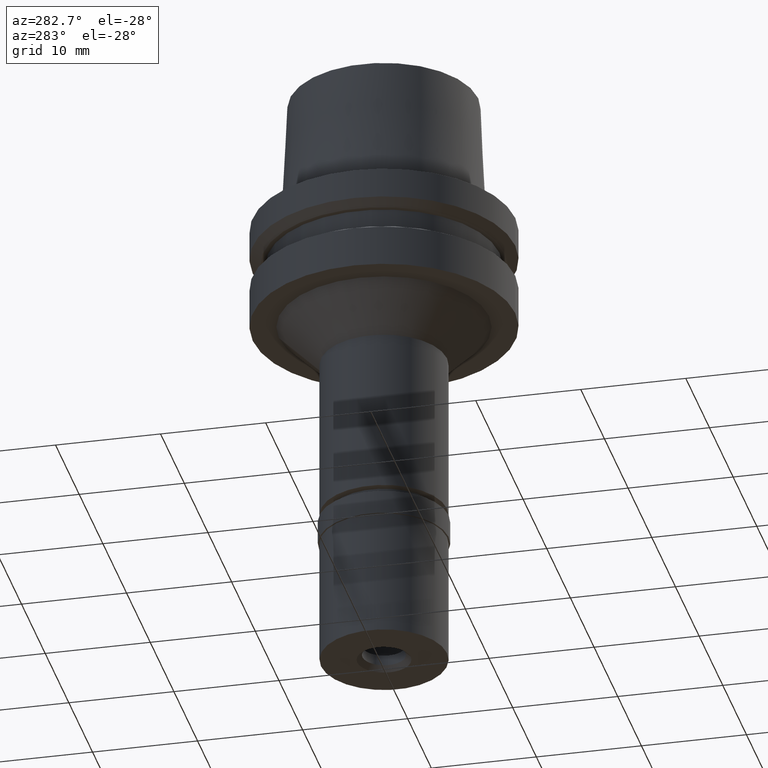
[diagram: clean part render]
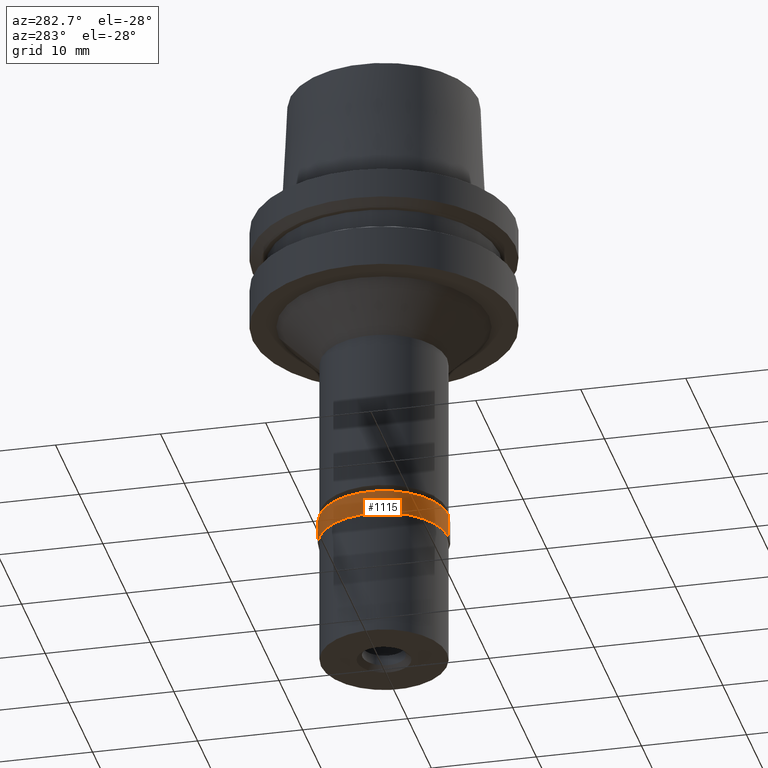
[diagram: same view with one face highlighted and labeled with its STEP entity id]
A machine part, auxiliary view. The second image highlights one B-rep face of the part: STEP entity #1115.
In plain terms, the highlighted cylindrical surface (partial cylindrical patch) has radius 6.15 mm, axis along (0, 0, 1).
Its self-contained STEP definition (entity closure, byte-faithful):
#48 = CARTESIAN_POINT ( 'NONE',  ( 0.0000000000000000000, -6.150000000000000355, 0.0000000000000000000 ) ) ;
#117 = CARTESIAN_POINT ( 'NONE',  ( 0.0000000000000000000, 6.150000000000000355, -2.299999999999999822 ) ) ;
#147 = DIRECTION ( 'NONE',  ( 0.0000000000000000000, 1.000000000000000000, 0.0000000000000000000 ) ) ;
#268 = EDGE_CURVE ( 'NONE', #1145, #2687, #2249, .T. ) ;
#279 = DIRECTION ( 'NONE',  ( 0.0000000000000000000, 0.0000000000000000000, -1.000000000000000000 ) ) ;
#453 = LINE ( 'NONE', #48, #860 ) ;
#483 = ORIENTED_EDGE ( 'NONE', *, *, #2011, .T. ) ;
#533 = CARTESIAN_POINT ( 'NONE',  ( 0.0000000000000000000, -6.150000000000000355, -2.299999999999999822 ) ) ;
#577 = CARTESIAN_POINT ( 'NONE',  ( 0.0000000000000000000, 0.0000000000000000000, -15.22500000000000142 ) ) ;
#613 = EDGE_CURVE ( 'NONE', #807, #2115, #1641, .T. ) ;
#624 = DIRECTION ( 'NONE',  ( 0.0000000000000000000, 1.000000000000000000, 0.0000000000000000000 ) ) ;
#652 = DIRECTION ( 'NONE',  ( 0.0000000000000000000, 0.0000000000000000000, 1.000000000000000000 ) ) ;
#763 = CARTESIAN_POINT ( 'NONE',  ( 0.0000000000000000000, -6.150000000000000355, 1.953992523340000041E-14 ) ) ;
#769 = AXIS2_PLACEMENT_3D ( 'NONE', #577, #1579, #147 ) ;
#807 = VERTEX_POINT ( 'NONE', #117 ) ;
#860 = VECTOR ( 'NONE', #279, 1000.000000000000000 ) ;
#906 = CARTESIAN_POINT ( 'NONE',  ( 0.0000000000000000000, 6.150000000000000355, 0.0000000000000000000 ) ) ;
#1115 = ADVANCED_FACE ( 'NONE', ( #2403 ), #2627, .T. ) ;
#1145 = VERTEX_POINT ( 'NONE', #763 ) ;
#1207 = DIRECTION ( 'NONE',  ( 0.0000000000000000000, -1.000000000000000000, 0.0000000000000000000 ) ) ;
#1575 = EDGE_CURVE ( 'NONE', #1145, #2115, #453, .T. ) ;
#1579 = DIRECTION ( 'NONE',  ( 0.0000000000000000000, 0.0000000000000000000, 1.000000000000000000 ) ) ;
#1612 = DIRECTION ( 'NONE',  ( 0.0000000000000000000, 0.0000000000000000000, -1.000000000000000000 ) ) ;
#1641 = CIRCLE ( 'NONE', #1982, 6.150000000000000355 ) ;
#1842 = CARTESIAN_POINT ( 'NONE',  ( 0.0000000000000000000, 0.0000000000000000000, -2.299999999999999822 ) ) ;
#1982 = AXIS2_PLACEMENT_3D ( 'NONE', #1842, #652, #624 ) ;
#2011 = EDGE_CURVE ( 'NONE', #2687, #807, #2559, .T. ) ;
#2075 = VECTOR ( 'NONE', #2544, 1000.000000000000000 ) ;
#2115 = VERTEX_POINT ( 'NONE', #533 ) ;
#2142 = ORIENTED_EDGE ( 'NONE', *, *, #1575, .F. ) ;
#2150 = EDGE_LOOP ( 'NONE', ( #2412, #2142, #2246, #483 ) ) ;
#2206 = AXIS2_PLACEMENT_3D ( 'NONE', #2241, #1612, #1207 ) ;
#2241 = CARTESIAN_POINT ( 'NONE',  ( 0.0000000000000000000, 0.0000000000000000000, 1.953992523340000041E-14 ) ) ;
#2246 = ORIENTED_EDGE ( 'NONE', *, *, #268, .T. ) ;
#2249 = CIRCLE ( 'NONE', #2206, 6.150000000000000355 ) ;
#2403 = FACE_OUTER_BOUND ( 'NONE', #2150, .T. ) ;
#2412 = ORIENTED_EDGE ( 'NONE', *, *, #613, .T. ) ;
#2528 = CARTESIAN_POINT ( 'NONE',  ( 0.0000000000000000000, 6.150000000000000355, 1.953992523340000041E-14 ) ) ;
#2544 = DIRECTION ( 'NONE',  ( 0.0000000000000000000, 0.0000000000000000000, -1.000000000000000000 ) ) ;
#2559 = LINE ( 'NONE', #906, #2075 ) ;
#2627 = CYLINDRICAL_SURFACE ( 'NONE', #769, 6.150000000000000355 ) ;
#2687 = VERTEX_POINT ( 'NONE', #2528 ) ;